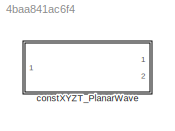
MODEL slx_4baa841ac6f4
KIND library
CONFIG AbsTol = auto
CONFIG EnableMultiTasking = off
CONFIG FixedStep = auto
CONFIG MaxStep = auto
CONFIG MinStep = auto
CONFIG RelTol = 1e-3
CONFIG SampleTimeConstraint = Unconstrained
CONFIG SolverName = VariableStepAuto
CONFIG StartTime = 0.0
CONFIG StopTime = 10.0
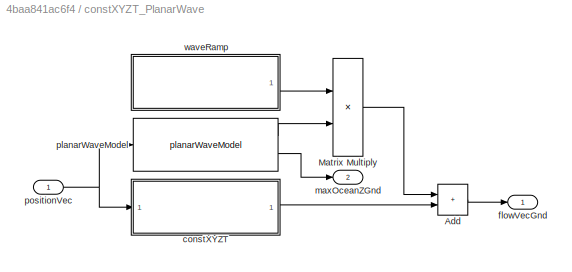
BLOCK [SubSystem] constXYZT_PlanarWave
  Ports = [1, 2]
  RequestExecContextInheritance = off
BLOCK [Sum] constXYZT_PlanarWave/Add
  IconShape = rectangular
  Ports = [2, 1]
BLOCK [Product] constXYZT_PlanarWave/Matrix Multiply
  Ports = [2, 1]
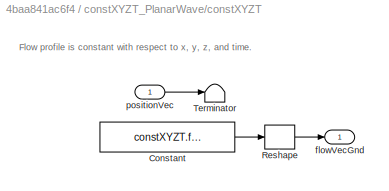
BLOCK [SubSystem] constXYZT_PlanarWave/constXYZT
  Ports = [1, 1]
  RequestExecContextInheritance = off
BLOCK [Constant] constXYZT_PlanarWave/constXYZT/Constant
  Value = constXYZT.flowVec.Value
BLOCK [Reshape] constXYZT_PlanarWave/constXYZT/Reshape
  OutputDimensionality = Column vector (2-D)
  Ports = [1, 1]
BLOCK [Terminator] constXYZT_PlanarWave/constXYZT/Terminator
BLOCK [Outport] constXYZT_PlanarWave/constXYZT/flowVecGnd
  VectorParamsAs1DForOutWhenUnconnected = off
BLOCK [Inport] constXYZT_PlanarWave/constXYZT/positionVec
BLOCK [Outport] constXYZT_PlanarWave/flowVecGnd
  VectorParamsAs1DForOutWhenUnconnected = off
BLOCK [Outport] constXYZT_PlanarWave/maxOceanZGnd
  Port = 2
  VectorParamsAs1DForOutWhenUnconnected = off
BLOCK [Reference] constXYZT_PlanarWave/planarWaveModel  REF=planarWaveModel_ul/planarWaveModel
  Ports = [1, 2]
  SourceBlock = planarWaveModel_ul/planarWaveModel
  SourceType = SubSystem
BLOCK [Inport] constXYZT_PlanarWave/positionVec
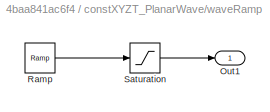
BLOCK [SubSystem] constXYZT_PlanarWave/waveRamp
  Ports = [0, 1]
  RequestExecContextInheritance = off
BLOCK [Outport] constXYZT_PlanarWave/waveRamp/Out1
BLOCK [Reference] constXYZT_PlanarWave/waveRamp/Ramp  REF=simulink/Sources/Ramp
  Ports = [0, 1]
  SourceBlock = simulink/Sources/Ramp
  SourceProductBaseCode = SL
  SourceType = Ramp
BLOCK [Saturate] constXYZT_PlanarWave/waveRamp/Saturation
  LowerLimit = 0
  UpperLimit = 1
ANNOTATION constXYZT_PlanarWave/constXYZT: Flow profile is constant with respect to x, y, z, and time.
LINE constXYZT_PlanarWave/Add:1 -> constXYZT_PlanarWave/flowVecGnd:1
LINE constXYZT_PlanarWave/Matrix Multiply:1 -> constXYZT_PlanarWave/Add:1
LINE constXYZT_PlanarWave/constXYZT/Constant:1 -> constXYZT_PlanarWave/constXYZT/Reshape:1
LINE constXYZT_PlanarWave/constXYZT/Reshape:1 -> constXYZT_PlanarWave/constXYZT/flowVecGnd:1
LINE constXYZT_PlanarWave/constXYZT/positionVec:1 -> constXYZT_PlanarWave/constXYZT/Terminator:1
LINE constXYZT_PlanarWave/constXYZT:1 -> constXYZT_PlanarWave/Add:2
LINE constXYZT_PlanarWave/planarWaveModel:1 -> constXYZT_PlanarWave/Matrix Multiply:2
LINE constXYZT_PlanarWave/planarWaveModel:2 -> constXYZT_PlanarWave/maxOceanZGnd:1
NET constXYZT_PlanarWave/positionVec:1 -> constXYZT_PlanarWave/constXYZT:1, constXYZT_PlanarWave/planarWaveModel:1
LINE constXYZT_PlanarWave/waveRamp/Ramp:1 -> constXYZT_PlanarWave/waveRamp/Saturation:1
LINE constXYZT_PlanarWave/waveRamp/Saturation:1 -> constXYZT_PlanarWave/waveRamp/Out1:1
LINE constXYZT_PlanarWave/waveRamp:1 -> constXYZT_PlanarWave/Matrix Multiply:1
note: NET lines group one-source signal fan-out (src -> all destinations, sorted); 1:1 wires keep LINE
